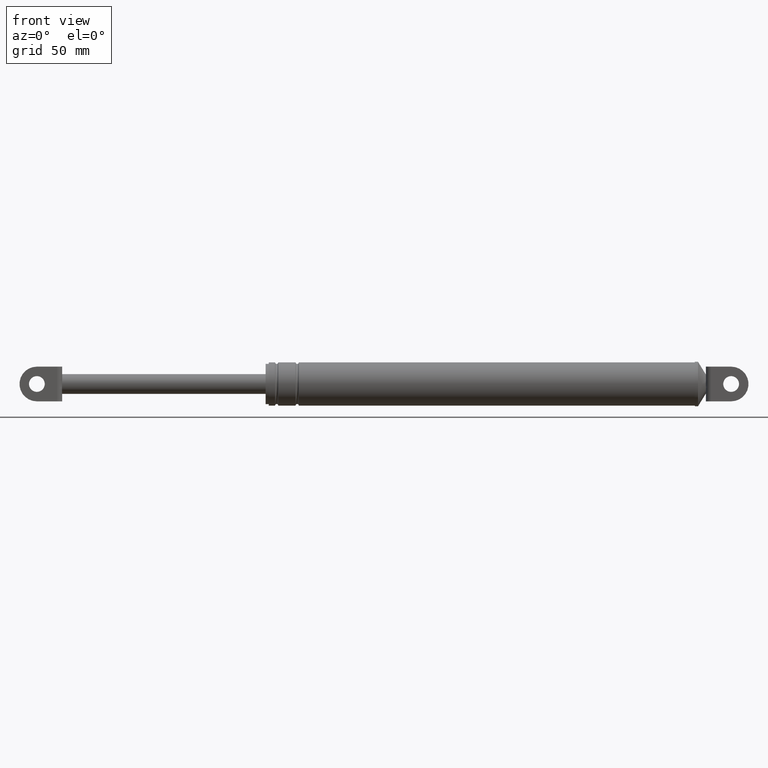
[diagram: clean part render]
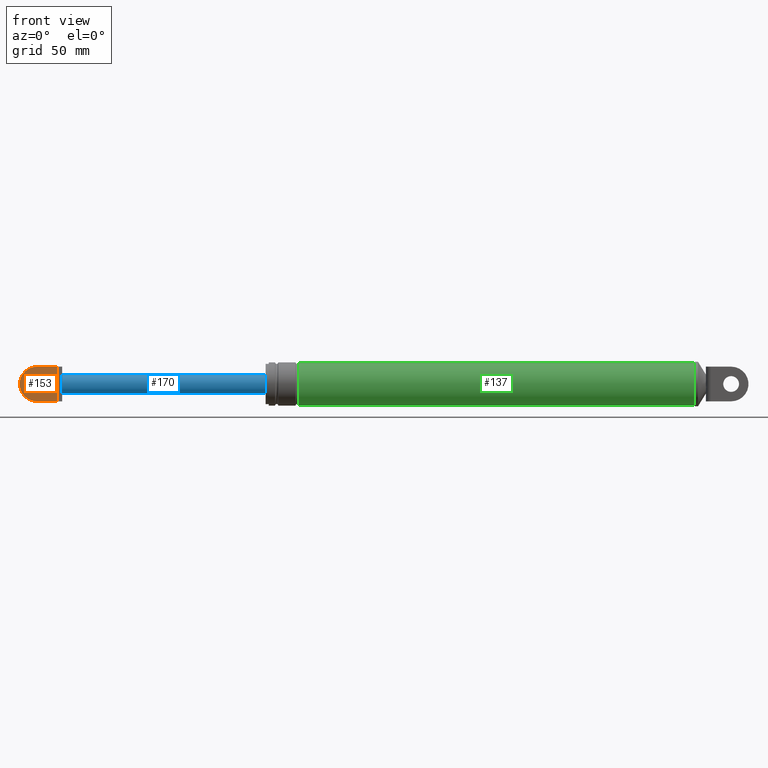
[diagram: same view with three faces highlighted in distinct colors, each labeled with its STEP entity id]
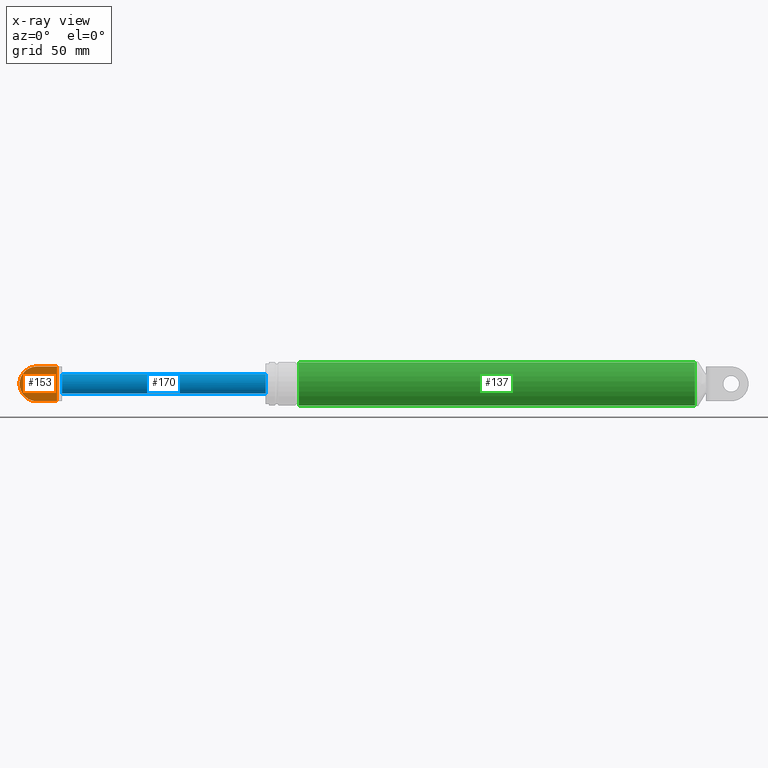
[diagram: x-ray of the same camera — body ghosted, the three highlighted faces saturated]
A machine part, front view with three faces highlighted in distinct colors.
The next image is the same camera in x-ray (body ghosted, the three faces saturated) — at least one of them is partly hidden behind the body in this view.
Their STEP definitions:

[orange] entity #153 — the highlighted planar face has unit normal (0, -1, 0).
#153=ADVANCED_FACE('',(#594,#595),#593,.T.);
#593=PLANE('',#1545);
#594=FACE_OUTER_BOUND('',#1546,.T.);
#595=FACE_BOUND('',#1547,.T.);
#1542=CARTESIAN_POINT('',(-2.27135253810E+001,-8.69999700000E+000,2.02928345508E+002));
#1543=DIRECTION('',(0.00000000000E+000,-1.00000000000E+000,0.00000000000E+000));
#1544=DIRECTION('',(0.00000000000E+000,0.00000000000E+000,-1.00000000000E+000));
#1545=AXIS2_PLACEMENT_3D('',#1542,#1543,#1544);
#1546=EDGE_LOOP('',(#2301,#2302,#2303,#2304,#2305,#2306));
#1547=EDGE_LOOP('',(#2307,#2308));
#2301=ORIENTED_EDGE('',*,*,#2519,.F.);
#2302=ORIENTED_EDGE('',*,*,#2520,.T.);
#2303=ORIENTED_EDGE('',*,*,#2521,.T.);
#2304=ORIENTED_EDGE('',*,*,#2522,.T.);
#2305=ORIENTED_EDGE('',*,*,#2523,.T.);
#2306=ORIENTED_EDGE('',*,*,#2524,.T.);
#2307=ORIENTED_EDGE('',*,*,#2525,.F.);
#2308=ORIENTED_EDGE('',*,*,#2526,.F.);
#2519=EDGE_CURVE('',#3239,#3240,#3241,.T.);
#2520=EDGE_CURVE('',#3239,#3247,#3248,.T.);
#2521=EDGE_CURVE('',#3247,#3254,#3255,.T.);
#2522=EDGE_CURVE('',#3254,#3261,#3262,.T.);
#2523=EDGE_CURVE('',#3261,#3268,#3269,.T.);
#2524=EDGE_CURVE('',#3268,#3240,#3275,.T.);
#2525=EDGE_CURVE('',#3281,#3282,#3283,.T.);
#2526=EDGE_CURVE('',#3282,#3281,#3289,.T.);
#3239=VERTEX_POINT('',#4044);
#3240=VERTEX_POINT('',#4045);
#3241=LINE('',#4046,#4047);
#3247=VERTEX_POINT('',#4049);
#3248=LINE('',#4050,#4051);
#3254=VERTEX_POINT('',#4053);
#3255=(BOUNDED_CURVE() B_SPLINE_CURVE(3,(#4054,#4055,#4056,#4057,#4058,#4059,#4060,#4061,#4062,#4063),.UNSPECIFIED.,.F.,.F.) B_SPLINE_CURVE_WITH_KNOTS((4,2,2,2,4),(0.00000000000E+000,1.48458878572E-003,2.96917757145E-003,4.45376635717E-003,5.93835514290E-003),.UNSPECIFIED.) CURVE() GEOMETRIC_REPRESENTATION_ITEM() RATIONAL_B_SPLINE_CURVE((1.00000000000E+000,1.00000000000E+000,1.00000000000E+000,1.00000000000E+000,1.00000000000E+000,1.00000000000E+000,1.00000000000E+000,1.00000000000E+000,1.00000000000E+000,1.00000000000E+000)) REPRESENTATION_ITEM('') );
#3261=VERTEX_POINT('',#4064);
#3262=LINE('',#4065,#4066);
#3268=VERTEX_POINT('',#4068);
#3269=LINE('',#4069,#4070);
#3275=CIRCLE('',#4075,1.10000000000E+001);
#3281=VERTEX_POINT('',#4076);
#3282=VERTEX_POINT('',#4077);
#3283=CIRCLE('',#4081,5.00000000000E+000);
#3289=CIRCLE('',#4085,5.00000000000E+000);
#4044=CARTESIAN_POINT('',(3.47539086071E+000,-8.69999700000E+000,1.78728345508E+002));
#4045=CARTESIAN_POINT('',(-9.32461009922E+000,-8.69999700000E+000,1.78728345508E+002));
#4046=CARTESIAN_POINT('',(3.47539086071E+000,-8.69999700000E+000,1.78728345508E+002));
#4047=VECTOR('',#4048,1.28000009599E+001);
#4048=DIRECTION('',(-1.00000000000E+000,0.00000000000E+000,0.00000000000E+000));
#4049=CARTESIAN_POINT('',(3.47539086071E+000,-8.69999700000E+000,1.86759754428E+002));
#4050=CARTESIAN_POINT('',(3.47539086071E+000,-8.69999700000E+000,1.78728345508E+002));
#4051=VECTOR('',#4052,8.03140892004E+000);
#4052=DIRECTION('',(0.00000000000E+000,0.00000000000E+000,1.00000000000E+000));
#4053=CARTESIAN_POINT('',(3.47539086071E+000,-8.69999700000E+000,1.92696936588E+002));
#4054=CARTESIAN_POINT('',(3.47539086071E+000,-8.69999700000E+000,1.86759754428E+002));
#4055=CARTESIAN_POINT('',(3.47539086071E+000,-8.69999700000E+000,1.87254617548E+002));
#4056=CARTESIAN_POINT('',(3.50093061812E+000,-8.69999700000E+000,1.87748924030E+002));
#4057=CARTESIAN_POINT('',(3.54615375646E+000,-8.69999700000E+000,1.88737635505E+002));
#4058=CARTESIAN_POINT('',(3.56449371537E+000,-8.69999700000E+000,1.89232090770E+002));
#4059=CARTESIAN_POINT('',(3.56455327787E+000,-8.69999700000E+000,1.90221854550E+002));
#4060=CARTESIAN_POINT('',(3.54623865630E+000,-8.69999700000E+000,1.90717091524E+002));
#4061=CARTESIAN_POINT('',(3.50098538883E+000,-8.69999700000E+000,1.91706677030E+002));
#4062=CARTESIAN_POINT('',(3.47539086071E+000,-8.69999700000E+000,1.92201368021E+002));
#4063=CARTESIAN_POINT('',(3.47539086071E+000,-8.69999700000E+000,1.92696936588E+002));
#4064=CARTESIAN_POINT('',(3.47539086071E+000,-8.69999700000E+000,2.00728345508E+002));
#4065=CARTESIAN_POINT('',(3.47539086071E+000,-8.69999700000E+000,1.92696936588E+002));
#4066=VECTOR('',#4067,8.03140892005E+000);
#4067=DIRECTION('',(0.00000000000E+000,0.00000000000E+000,1.00000000000E+000));
#4068=CARTESIAN_POINT('',(-9.32461009922E+000,-8.69999700000E+000,2.00728345508E+002));
#4069=CARTESIAN_POINT('',(3.47539086071E+000,-8.69999700000E+000,2.00728345508E+002));
#4070=VECTOR('',#4071,1.28000009599E+001);
#4071=DIRECTION('',(-1.00000000000E+000,0.00000000000E+000,0.00000000000E+000));
#4072=CARTESIAN_POINT('',(-9.32460913929E+000,-8.69999700000E+000,1.89728345508E+002));
#4073=DIRECTION('',(-5.70942737161E-017,-1.00000000000E+000,-4.98241256713E-024));
#4074=DIRECTION('',(8.72664147005E-008,1.98364671701E-038,-1.00000000000E+000));
#4075=AXIS2_PLACEMENT_3D('',#4072,#4073,#4074);
#4076=CARTESIAN_POINT('',(-9.32460913929E+000,-8.69999700000E+000,1.94728345508E+002));
#4077=CARTESIAN_POINT('',(-9.32460913929E+000,-8.69999700000E+000,1.84728345508E+002));
#4078=CARTESIAN_POINT('',(-9.32460913929E+000,-8.69999700000E+000,1.89728345508E+002));
#4079=DIRECTION('',(1.25607396695E-016,-1.00000000000E+000,9.81743656071E-031));
#4080=DIRECTION('',(-4.61852778244E-015,-1.56186490739E-030,-1.00000000000E+000));
#4081=AXIS2_PLACEMENT_3D('',#4078,#4079,#4080);
#4082=CARTESIAN_POINT('',(-9.32460913929E+000,-8.69999700000E+000,1.89728345508E+002));
#4083=DIRECTION('',(1.25607396695E-016,-1.00000000000E+000,9.81743656071E-031));
#4084=DIRECTION('',(-4.61852778244E-015,-1.56186490739E-030,-1.00000000000E+000));
#4085=AXIS2_PLACEMENT_3D('',#4082,#4083,#4084);

[blue] entity #170 — the highlighted cylindrical surface (edge-blend (fillet) strip) has radius 6.25 mm, axis along (-1, 0, 0).
#170=ADVANCED_FACE('',(#767),#766,.T.);
#766=CYLINDRICAL_SURFACE('',#2080,6.25000000000E+000);
#767=FACE_OUTER_BOUND('',#2081,.T.);
#2077=CARTESIAN_POINT('',(-3.32460913929E+000,-3.41042228289E-013,1.89728345508E+002));
#2078=DIRECTION('',(-1.00000000000E+000,8.03887338846E-016,5.15686441477E-029));
#2079=DIRECTION('',(9.63272986039E-031,6.53473622425E-014,-1.00000000000E+000));
#2080=AXIS2_PLACEMENT_3D('',#2077,#2078,#2079);
#2081=EDGE_LOOP('',(#2391,#2392,#2393,#2394,#2395,#2396));
#2391=ORIENTED_EDGE('',*,*,#2556,.F.);
#2392=ORIENTED_EDGE('',*,*,#2566,.F.);
#2393=ORIENTED_EDGE('',*,*,#2552,.F.);
#2394=ORIENTED_EDGE('',*,*,#2569,.F.);
#2395=ORIENTED_EDGE('',*,*,#2567,.F.);
#2396=ORIENTED_EDGE('',*,*,#2570,.T.);
#2552=EDGE_CURVE('',#3454,#3461,#3462,.T.);
#2556=EDGE_CURVE('',#3382,#3488,#3489,.T.);
#2566=EDGE_CURVE('',#3461,#3382,#3553,.T.);
#2567=EDGE_CURVE('',#3559,#3560,#3561,.T.);
#2569=EDGE_CURVE('',#3560,#3454,#3573,.T.);
#2570=EDGE_CURVE('',#3559,#3488,#3579,.T.);
#3382=VERTEX_POINT('',#4139);
#3454=VERTEX_POINT('',#4181);
#3461=VERTEX_POINT('',#4186);
#3462=CIRCLE('',#4190,6.25000000000E+000);
#3488=VERTEX_POINT('',#4204);
#3489=CIRCLE('',#4208,6.25000000000E+000);
#3553=(BOUNDED_CURVE() B_SPLINE_CURVE(3,(#4263,#4264,#4265,#4266,#4267,#4268,#4269,#4270,#4271,#4272,#4273,#4274,#4275,#4276),.UNSPECIFIED.,.F.,.F.) B_SPLINE_CURVE_WITH_KNOTS((4,2,2,2,2,2,4),(1.05490729700E-015,1.53874816972E-003,2.30812225457E-003,3.07749633943E-003,3.84687042429E-003,4.61624450914E-003,6.15499267886E-003),.UNSPECIFIED.) CURVE() GEOMETRIC_REPRESENTATION_ITEM() RATIONAL_B_SPLINE_CURVE((1.00000000000E+000,1.00000000000E+000,1.00000000000E+000,1.00000000000E+000,1.00000000000E+000,1.00000000000E+000,1.00000000000E+000,1.00000000000E+000,1.00000000000E+000,1.00000000000E+000,1.00000000000E+000,1.00000000000E+000,1.00000000000E+000,1.00000000000E+000)) REPRESENTATION_ITEM('') );
#3559=VERTEX_POINT('',#4277);
#3560=VERTEX_POINT('',#4278);
#3561=CIRCLE('',#4282,6.25000000000E+000);
#3573=(BOUNDED_CURVE() B_SPLINE_CURVE(1,(#4287,#4288),.UNSPECIFIED.,.F.,.F.) B_SPLINE_CURVE_WITH_KNOTS((2,2),(6.71140225601E-002,9.32884912048E-001),.UNSPECIFIED.) CURVE() GEOMETRIC_REPRESENTATION_ITEM() RATIONAL_B_SPLINE_CURVE((1.00000000000E+000,1.00000000000E+000)) REPRESENTATION_ITEM('') );
#3579=(BOUNDED_CURVE() B_SPLINE_CURVE(1,(#4289,#4290),.UNSPECIFIED.,.F.,.F.) B_SPLINE_CURVE_WITH_KNOTS((2,2),(6.71140224430E-002,9.32884911957E-001),.UNSPECIFIED.) CURVE() GEOMETRIC_REPRESENTATION_ITEM() RATIONAL_B_SPLINE_CURVE((7.50000000000E-001,7.50000000000E-001)) REPRESENTATION_ITEM('') );
#4139=CARTESIAN_POINT('',(6.67539086071E+000,-5.49999700000E+000,1.92696936588E+002));
#4181=CARTESIAN_POINT('',(6.67539086071E+000,-4.21341194098E-012,1.83478345508E+002));
#4186=CARTESIAN_POINT('',(6.67539086071E+000,-5.49999700000E+000,1.86759754428E+002));
#4187=CARTESIAN_POINT('',(6.67539086071E+000,-6.90558721317E-013,1.89728345508E+002));
#4188=DIRECTION('',(-1.00000000000E+000,0.00000000000E+000,0.00000000000E+000));
#4189=DIRECTION('',(-0.00000000000E+000,-8.79999520000E-001,4.74974572793E-001));
#4190=AXIS2_PLACEMENT_3D('',#4187,#4188,#4189);
#4204=CARTESIAN_POINT('',(6.67539086071E+000,7.89965395271E-007,1.95978345508E+002));
#4205=CARTESIAN_POINT('',(6.67539086071E+000,2.88657986403E-013,1.89728345508E+002));
#4206=DIRECTION('',(-1.00000000000E+000,-4.94022366089E-017,-9.15289933251E-017));
#4207=DIRECTION('',(4.93038065763E-032,8.79999520000E-001,-4.74974572793E-001));
#4208=AXIS2_PLACEMENT_3D('',#4205,#4206,#4207);
#4263=CARTESIAN_POINT('',(6.67539086071E+000,-5.49999700000E+000,1.86759754428E+002));
#4264=CARTESIAN_POINT('',(6.67539086071E+000,-5.74712672501E+000,1.87217619021E+002));
#4265=CARTESIAN_POINT('',(6.67544874159E+000,-5.93278395134E+000,1.87696282287E+002));
#4266=CARTESIAN_POINT('',(6.67535211818E+000,-6.12211317241E+000,1.88444442516E+002));
#4267=CARTESIAN_POINT('',(6.67523792176E+000,-6.17036546657E+000,1.88700692921E+002));
#4268=CARTESIAN_POINT('',(6.67525492907E+000,-6.23420315065E+000,1.89214350463E+002));
#4269=CARTESIAN_POINT('',(6.67539116690E+000,-6.24996416999E+000,1.89470999578E+002));
#4270=CARTESIAN_POINT('',(6.67539055373E+000,-6.25003570844E+000,1.89983948123E+002));
#4271=CARTESIAN_POINT('',(6.67524975817E+000,-6.23434520654E+000,1.90240247542E+002));
#4272=CARTESIAN_POINT('',(6.67523208615E+000,-6.17091822753E+000,1.90752490066E+002));
#4273=CARTESIAN_POINT('',(6.67535040483E+000,-6.12273082003E+000,1.91009444667E+002));
#4274=CARTESIAN_POINT('',(6.67545124710E+000,-5.93312941346E+000,1.91759765297E+002));
#4275=CARTESIAN_POINT('',(6.67539086071E+000,-5.74712672498E+000,1.92239071995E+002));
#4276=CARTESIAN_POINT('',(6.67539086071E+000,-5.49999700000E+000,1.92696936588E+002));
#4277=CARTESIAN_POINT('',(1.35675390861E+002,-4.52782568388E-013,1.95978345508E+002));
#4278=CARTESIAN_POINT('',(1.35675390861E+002,-4.51786756154E-013,1.83478345508E+002));
#4279=CARTESIAN_POINT('',(1.35675390861E+002,-4.52782568388E-013,1.89728345508E+002));
#4280=DIRECTION('',(1.00000000000E+000,0.00000000000E+000,-0.00000000000E+000));
#4281=DIRECTION('',(0.00000000000E+000,-1.22460635382E-016,1.00000000000E+000));
#4282=AXIS2_PLACEMENT_3D('',#4279,#4280,#4281);
#4287=CARTESIAN_POINT('',(1.35675390843E+002,-4.43615543586E-014,1.83478345508E+002));
#4288=CARTESIAN_POINT('',(6.67539084714E+000,5.93399123494E-014,1.83478345508E+002));
#4289=CARTESIAN_POINT('',(1.35675390861E+002,-8.60887308377E-013,1.95978345508E+002));
#4290=CARTESIAN_POINT('',(6.67539086071E+000,-7.57077840613E-013,1.95978345508E+002));

[green] entity #137 — the highlighted cylindrical surface (edge-blend (fillet) strip) has radius 13.7 mm, axis along (-1, -0, -0).
#137=ADVANCED_FACE('',(#433),#432,.T.);
#432=CYLINDRICAL_SURFACE('',#1380,1.37000000000E+001);
#433=FACE_OUTER_BOUND('',#1381,.T.);
#1377=CARTESIAN_POINT('',(1.46675390861E+002,3.95008575888E-013,1.89728345508E+002));
#1378=DIRECTION('',(-1.00000000000E+000,-0.00000000000E+000,-0.00000000000E+000));
#1379=DIRECTION('',(0.00000000000E+000,2.88327427655E-014,1.00000000000E+000));
#1380=AXIS2_PLACEMENT_3D('',#1377,#1378,#1379);
#1381=EDGE_LOOP('',(#2235,#2236,#2237,#2238));
#2235=ORIENTED_EDGE('',*,*,#2467,.T.);
#2236=ORIENTED_EDGE('',*,*,#2490,.T.);
#2237=ORIENTED_EDGE('',*,*,#2492,.F.);
#2238=ORIENTED_EDGE('',*,*,#2491,.F.);
#2467=EDGE_CURVE('',#2895,#2894,#2902,.T.);
#2490=EDGE_CURVE('',#2894,#3045,#3053,.T.);
#2491=EDGE_CURVE('',#2895,#3046,#3059,.T.);
#2492=EDGE_CURVE('',#3046,#3045,#3065,.T.);
#2894=VERTEX_POINT('',#3822);
#2895=VERTEX_POINT('',#3823);
#2902=CIRCLE('',#3831,1.37000000000E+001);
#3045=VERTEX_POINT('',#3933);
#3046=VERTEX_POINT('',#3934);
#3053=(BOUNDED_CURVE() B_SPLINE_CURVE(1,(#3939,#3940),.UNSPECIFIED.,.F.,.F.) B_SPLINE_CURVE_WITH_KNOTS((2,2),(3.69003689851E-002,9.63099631073E-001),.UNSPECIFIED.) CURVE() GEOMETRIC_REPRESENTATION_ITEM() RATIONAL_B_SPLINE_CURVE((1.00000000000E+000,1.00000000000E+000)) REPRESENTATION_ITEM('') );
#3059=(BOUNDED_CURVE() B_SPLINE_CURVE(1,(#3941,#3942),.UNSPECIFIED.,.F.,.F.) B_SPLINE_CURVE_WITH_KNOTS((2,2),(3.69003690037E-002,9.63099630996E-001),.UNSPECIFIED.) CURVE() GEOMETRIC_REPRESENTATION_ITEM() RATIONAL_B_SPLINE_CURVE((7.50000000000E-001,7.50000000000E-001)) REPRESENTATION_ITEM('') );
#3065=CIRCLE('',#3946,1.37000000000E+001);
#3822=CARTESIAN_POINT('',(4.07675390861E+002,8.50282807126E-013,2.03428345508E+002));
#3823=CARTESIAN_POINT('',(4.07675390861E+002,-2.37694337870E-015,1.76028345508E+002));
#3828=CARTESIAN_POINT('',(4.07675390861E+002,4.23015369852E-013,1.89728345508E+002));
#3829=DIRECTION('',(-1.00000000000E+000,-2.93389539725E-015,-9.09492754956E-029));
#3830=DIRECTION('',(1.82407580425E-028,-3.11729944479E-014,-1.00000000000E+000));
#3831=AXIS2_PLACEMENT_3D('',#3828,#3829,#3830);
#3933=CARTESIAN_POINT('',(1.56675390861E+002,8.50874926073E-013,2.03428345508E+002));
#3934=CARTESIAN_POINT('',(1.56675390861E+002,-3.89268144094E-015,1.76028345508E+002));
#3939=CARTESIAN_POINT('',(4.07675390866E+002,7.90017151776E-013,2.03428345508E+002));
#3940=CARTESIAN_POINT('',(1.56675390840E+002,7.90017151776E-013,2.03428345508E+002));
#3941=CARTESIAN_POINT('',(4.07675390861E+002,0.00000000000E+000,1.76028345508E+002));
#3942=CARTESIAN_POINT('',(1.56675390861E+002,0.00000000000E+000,1.76028345508E+002));
#3943=CARTESIAN_POINT('',(1.56675390861E+002,4.22257500821E-013,1.89728345508E+002));
#3944=DIRECTION('',(-1.00000000000E+000,0.00000000000E+000,0.00000000000E+000));
#3945=DIRECTION('',(-0.00000000000E+000,-3.12283133552E-014,-1.00000000000E+000));
#3946=AXIS2_PLACEMENT_3D('',#3943,#3944,#3945);